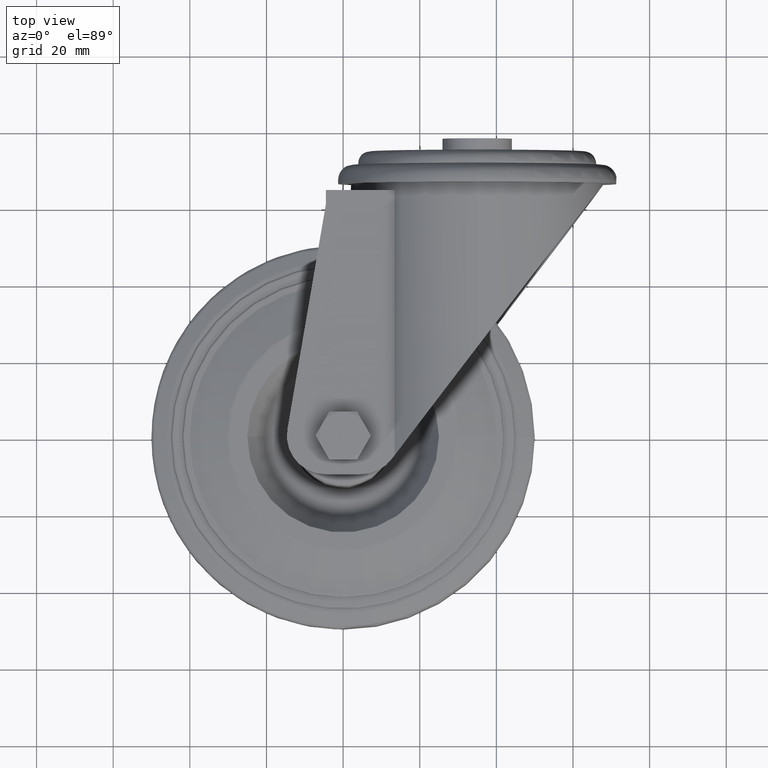
[diagram: clean part render]
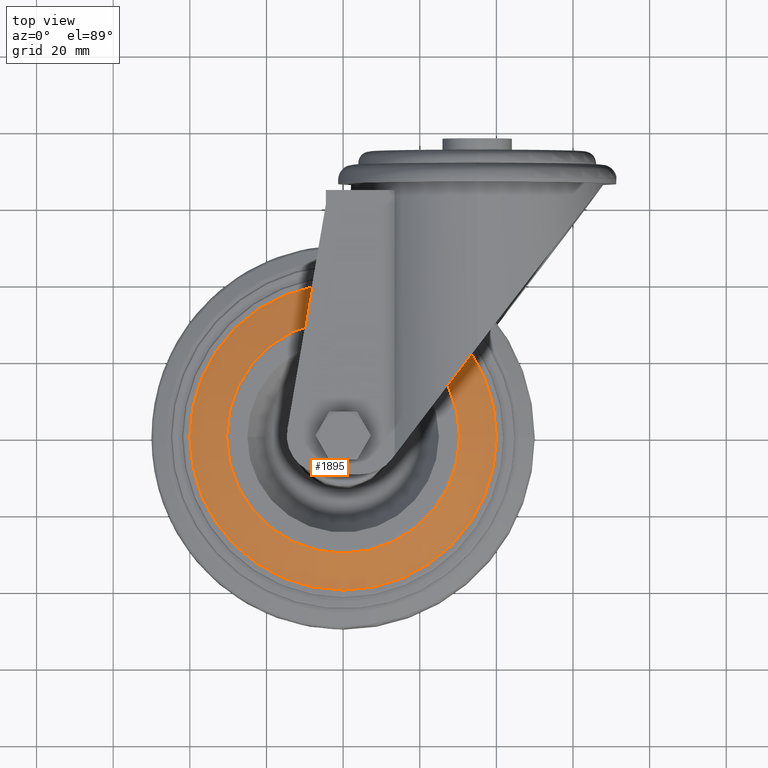
[diagram: same view with one face highlighted and labeled with its STEP entity id]
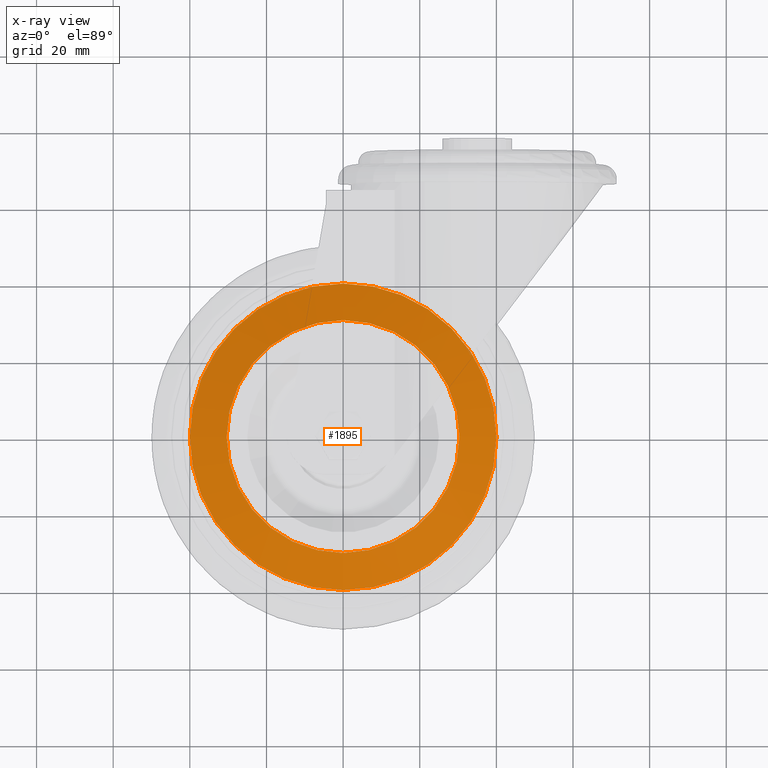
[diagram: x-ray of the same camera — body ghosted, the highlighted face saturated]
A machine part, top view. The second image highlights one B-rep face of the part: STEP entity #1895.
The next image is the same camera in x-ray: the body ghosted, the highlighted face saturated — about 0% of this face is hidden behind the body in this view.
In plain terms, the highlighted conical surface has half-angle 71 deg.
Its self-contained STEP definition (entity closure, byte-faithful):
#97=CONICAL_SURFACE('',#2222,40.,1.23918376891597);
#351=FACE_OUTER_BOUND('',#498,.T.);
#498=EDGE_LOOP('',(#1645,#1646,#1647,#1648));
#622=CIRCLE('',#2221,40.);
#623=CIRCLE('',#2223,30.3955638634393);
#744=LINE('',#3449,#819);
#819=VECTOR('',#2744,40.);
#951=VERTEX_POINT('',#3445);
#952=VERTEX_POINT('',#3448);
#1187=EDGE_CURVE('',#951,#951,#622,.T.);
#1188=EDGE_CURVE('',#951,#952,#744,.T.);
#1189=EDGE_CURVE('',#952,#952,#623,.T.);
#1645=ORIENTED_EDGE('',*,*,#1187,.F.);
#1646=ORIENTED_EDGE('',*,*,#1188,.T.);
#1647=ORIENTED_EDGE('',*,*,#1189,.T.);
#1648=ORIENTED_EDGE('',*,*,#1188,.F.);
#1895=ADVANCED_FACE('',(#351),#97,.T.);
#2221=AXIS2_PLACEMENT_3D('',#3446,#2740,#2741);
#2222=AXIS2_PLACEMENT_3D('',#3447,#2742,#2743);
#2223=AXIS2_PLACEMENT_3D('',#3450,#2745,#2746);
#2740=DIRECTION('center_axis',(6.12323399573677E-17,0.,-1.));
#2741=DIRECTION('ref_axis',(-1.,0.,-6.12323399573677E-17));
#2742=DIRECTION('center_axis',(6.12323399573677E-17,0.,-1.));
#2743=DIRECTION('ref_axis',(-1.,0.,-6.12323399573677E-17));
#2744=DIRECTION('',(-0.945518575599315,1.15792629714207E-16,0.32556815445716));
#2745=DIRECTION('center_axis',(6.12323399573677E-17,0.,-1.));
#2746=DIRECTION('ref_axis',(-1.,0.,-6.12323399573677E-17));
#3445=CARTESIAN_POINT('',(40.,-4.89858719658941E-15,11.5567238671033));
#3446=CARTESIAN_POINT('Origin',(-7.07645244623897E-16,0.,11.5567238671033));
#3447=CARTESIAN_POINT('Origin',(-7.07645244623897E-16,0.,11.5567238671033));
#3448=CARTESIAN_POINT('',(30.3955638634393,-3.72238299936399E-15,14.8637964389983));
#3449=CARTESIAN_POINT('',(40.,-4.89858719658941E-15,11.5567238671033));
#3450=CARTESIAN_POINT('Origin',(-9.10145036609855E-16,0.,14.8637964389983));